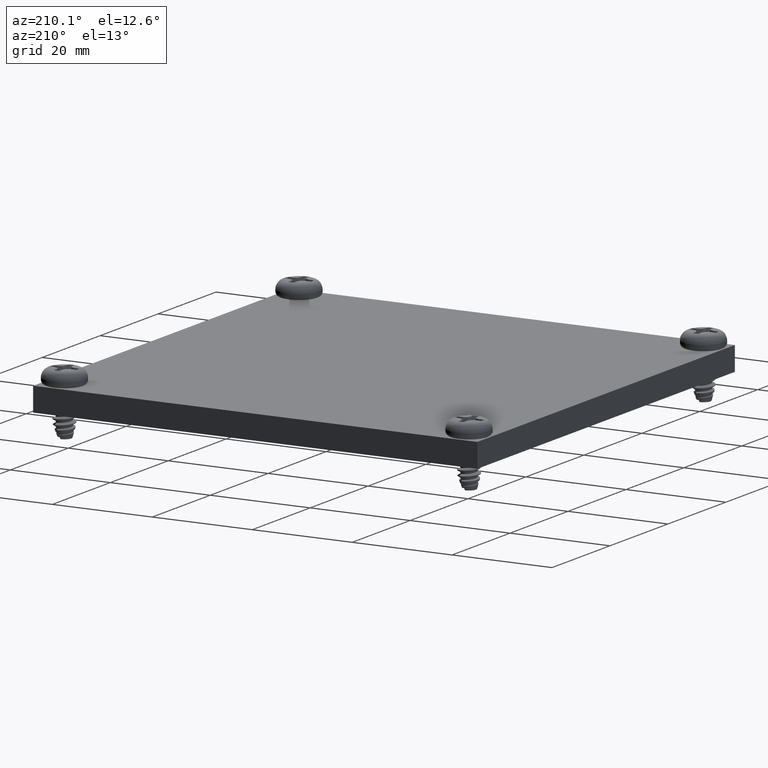
[diagram: clean part render]
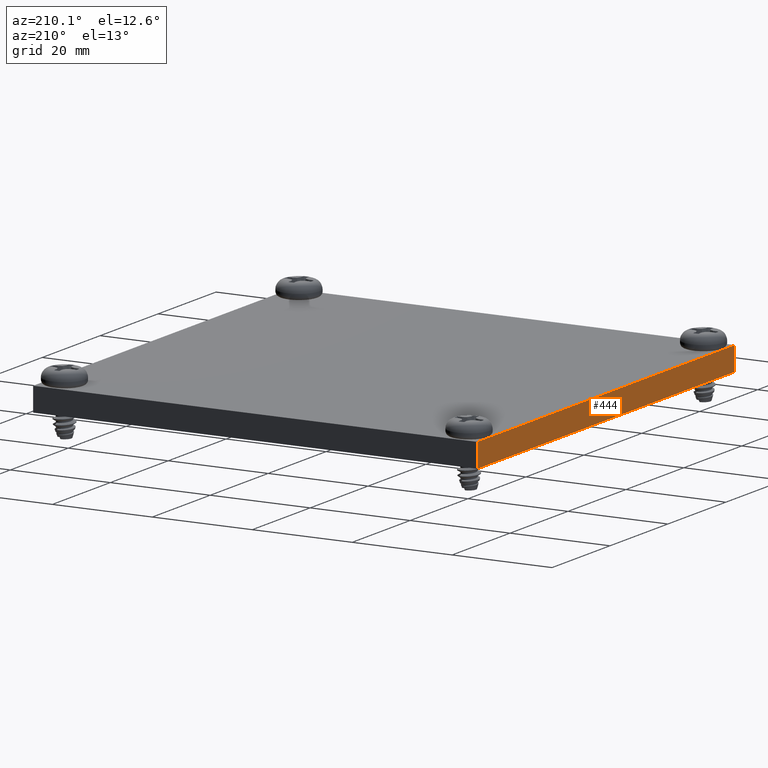
[diagram: same view with one face highlighted and labeled with its STEP entity id]
A machine part, auxiliary view. The second image highlights one B-rep face of the part: STEP entity #444.
In plain terms, the highlighted planar face has unit normal (-1, 0, 0).
Its self-contained STEP definition (entity closure, byte-faithful):
#45=DIRECTION('',(0.E0,-1.E0,0.E0));
#46=VECTOR('',#45,3.5E0);
#47=CARTESIAN_POINT('',(-1.75E0,1.75E0,0.E0));
#48=LINE('',#47,#46);
#117=DIRECTION('',(0.E0,-1.E0,0.E0));
#118=VECTOR('',#117,3.5E0);
#119=CARTESIAN_POINT('',(-1.75E0,1.75E0,-1.875E-1));
#120=LINE('',#119,#118);
#145=DIRECTION('',(0.E0,0.E0,-1.E0));
#146=VECTOR('',#145,1.875E-1);
#147=CARTESIAN_POINT('',(-1.75E0,-1.75E0,0.E0));
#148=LINE('',#147,#146);
#157=DIRECTION('',(0.E0,0.E0,-1.E0));
#158=VECTOR('',#157,1.875E-1);
#159=CARTESIAN_POINT('',(-1.75E0,1.75E0,0.E0));
#160=LINE('',#159,#158);
#177=CARTESIAN_POINT('',(-1.75E0,-1.75E0,0.E0));
#179=VERTEX_POINT('',#177);
#183=CARTESIAN_POINT('',(-1.75E0,1.75E0,0.E0));
#184=VERTEX_POINT('',#183);
#201=CARTESIAN_POINT('',(-1.75E0,-1.75E0,-1.875E-1));
#203=VERTEX_POINT('',#201);
#207=CARTESIAN_POINT('',(-1.75E0,1.75E0,-1.875E-1));
#208=VERTEX_POINT('',#207);
#433=CARTESIAN_POINT('',(-1.75E0,1.75E0,0.E0));
#434=DIRECTION('',(-1.E0,0.E0,0.E0));
#435=DIRECTION('',(0.E0,-1.E0,0.E0));
#436=AXIS2_PLACEMENT_3D('',#433,#434,#435);
#437=PLANE('',#436);
#438=ORIENTED_EDGE('',*,*,#216,.T.);
#439=ORIENTED_EDGE('',*,*,#402,.T.);
#440=ORIENTED_EDGE('',*,*,#288,.F.);
#441=ORIENTED_EDGE('',*,*,#426,.F.);
#442=EDGE_LOOP('',(#438,#439,#440,#441));
#443=FACE_OUTER_BOUND('',#442,.F.);
#444=ADVANCED_FACE('',(#443),#437,.T.);
#216=EDGE_CURVE('',#184,#179,#48,.T.);
#288=EDGE_CURVE('',#208,#203,#120,.T.);
#402=EDGE_CURVE('',#179,#203,#148,.T.);
#426=EDGE_CURVE('',#184,#208,#160,.T.);